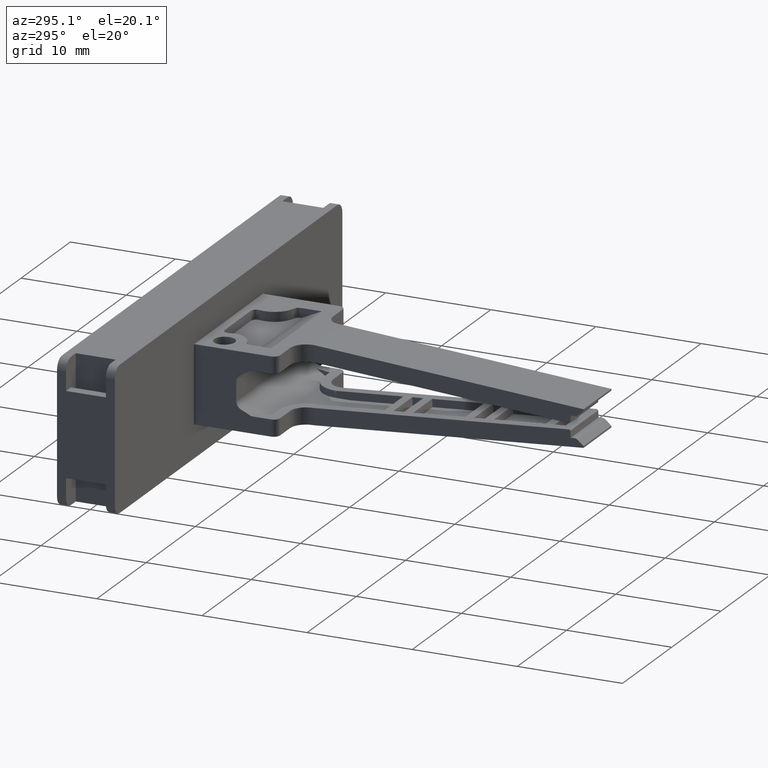
[diagram: clean part render]
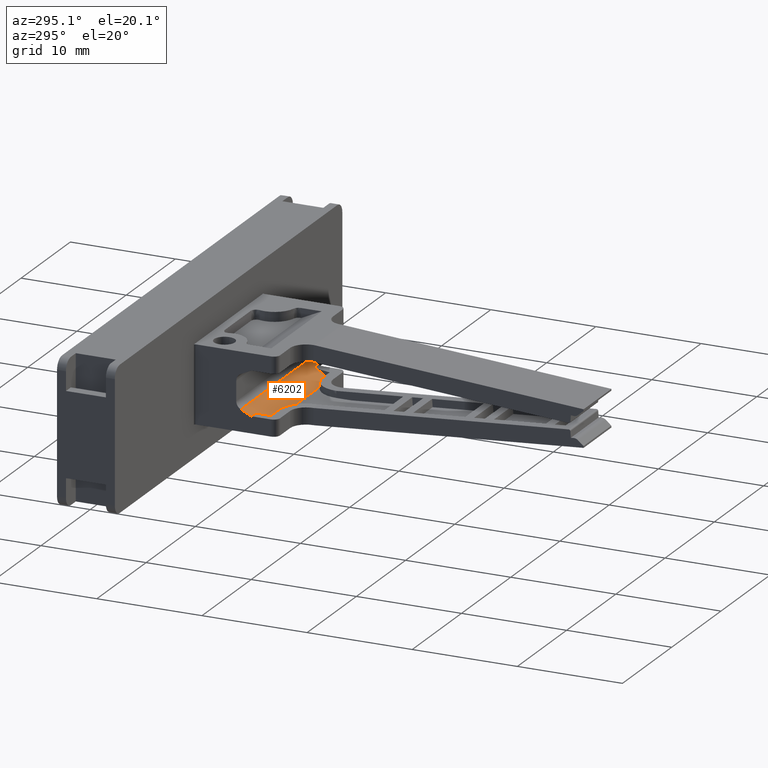
[diagram: same view with one face highlighted and labeled with its STEP entity id]
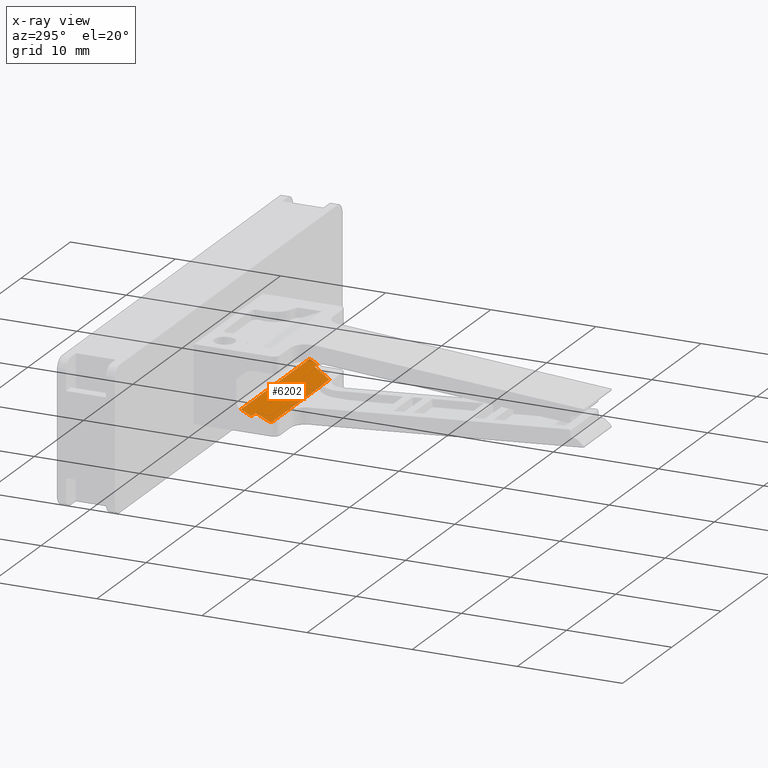
[diagram: x-ray of the same camera — body ghosted, the highlighted face saturated]
A machine part, auxiliary view. The second image highlights one B-rep face of the part: STEP entity #6202.
The next image is the same camera in x-ray: the body ghosted, the highlighted face saturated — about 1% of this face is hidden behind the body in this view.
In plain terms, the highlighted planar face has unit normal (-0, -0.4226, 0.9063).
Its self-contained STEP definition (entity closure, byte-faithful):
#622 = PLANE ( 'NONE',  #7367 ) ;
#636 = CARTESIAN_POINT ( 'NONE',  ( -428.7687003443962800, 141.8010320521553900, 13.44901421721973000 ) ) ;
#637 = DIRECTION ( 'NONE',  ( -6.632283297371180900E-015, -0.4226182617406978900, 0.9063077870366507100 ) ) ;
#639 = DIRECTION ( 'NONE',  ( 0.0000000000000000000, -0.9063077870366507100, -0.4226182617406978900 ) ) ;
#651 = FACE_OUTER_BOUND ( 'NONE', #4889, .T. ) ;
#1148 = CARTESIAN_POINT ( 'NONE',  ( -435.5423251422192800, 139.3574068649388700, 12.30953307876015800 ) ) ;
#1166 = CARTESIAN_POINT ( 'NONE',  ( -446.0397416577373500, 140.7867850768738000, 12.97606308538526000 ) ) ;
#1175 = CARTESIAN_POINT ( 'NONE',  ( -446.9170890845463800, 140.7867850768738000, 12.97606308538525800 ) ) ;
#1181 = CARTESIAN_POINT ( 'NONE',  ( -446.9170890845463800, 141.8010320521558500, 13.44901421721981400 ) ) ;
#1189 = CARTESIAN_POINT ( 'NONE',  ( -446.0397416577373000, 139.5468392362984400, 12.39786684422753500 ) ) ;
#1202 = CARTESIAN_POINT ( 'NONE',  ( -432.9670890845463300, 141.8010320521556800, 13.44901421721984400 ) ) ;
#2219 = CARTESIAN_POINT ( 'NONE',  ( -445.8397368130287100, 139.3468392363571700, 12.30460531262392200 ) ) ;
#2236 = CARTESIAN_POINT ( 'NONE',  ( -433.6497416578516800, 140.9877086759729800, 13.06975529834936700 ) ) ;
#2238 = CARTESIAN_POINT ( 'NONE',  ( -435.7695059051233700, 139.3470831730260200, 12.30471906216079100 ) ) ;
#2265 = CARTESIAN_POINT ( 'NONE',  ( -434.0824230767946700, 139.3575441641764900, 12.30959710244613700 ) ) ;
#2294 = CARTESIAN_POINT ( 'NONE',  ( -432.9670890845463300, 140.9877086759729800, 13.06975529834936900 ) ) ;
#3001 = CARTESIAN_POINT ( 'NONE',  ( -445.9444146662082200, 139.3677132532026200, 12.31433902653542500 ) ) ;
#3005 = CARTESIAN_POINT ( 'NONE',  ( -446.0383991784369200, 139.4912496597659700, 12.37194499897687400 ) ) ;
#3011 = LINE ( 'NONE', #3014, #7717 ) ;
#3014 = CARTESIAN_POINT ( 'NONE',  ( -428.7687003443962800, 140.7867850768737400, 12.97606308538536600 ) ) ;
#3016 = DIRECTION ( 'NONE',  ( 1.000000000000000000, -2.802924038506872700E-015, 6.010889998240615500E-015 ) ) ;
#3020 = CARTESIAN_POINT ( 'NONE',  ( -445.8972731701841200, 139.3481876095855500, 12.30523406938638000 ) ) ;
#3027 = CARTESIAN_POINT ( 'NONE',  ( -446.0397416577373000, 139.5468392362984400, 12.39786684422753500 ) ) ;
#3034 = CARTESIAN_POINT ( 'NONE',  ( -446.0179079359941200, 139.4431190812141500, 12.34950134160672500 ) ) ;
#3035 = CARTESIAN_POINT ( 'NONE',  ( -445.8397368130287100, 139.3468392363571700, 12.30460531262392200 ) ) ;
#3041 = LINE ( 'NONE', #3101, #7726 ) ;
#3101 = CARTESIAN_POINT ( 'NONE',  ( -428.7687003443962800, 140.9877086759729800, 13.06975529834939600 ) ) ;
#3105 = DIRECTION ( 'NONE',  ( 1.000000000000000000, -2.802924038506872700E-015, 6.010889998240615500E-015 ) ) ;
#3110 = LINE ( 'NONE', #3122, #6962 ) ;
#3111 = DIRECTION ( 'NONE',  ( 0.0000000000000000000, -0.9063077870366526000, -0.4226182617406938300 ) ) ;
#3122 = CARTESIAN_POINT ( 'NONE',  ( -446.0397416577373500, 140.7867850768738000, 12.97606308538526100 ) ) ;
#3186 = CARTESIAN_POINT ( 'NONE',  ( -435.6939349519059300, 139.3539585056158200, 12.30792460297095300 ) ) ;
#3189 = LINE ( 'NONE', #3248, #6999 ) ;
#3196 = CARTESIAN_POINT ( 'NONE',  ( -432.9670890845463300, 141.8010320521553900, 13.44901421721970500 ) ) ;
#3198 = LINE ( 'NONE', #3196, #6987 ) ;
#3211 = DIRECTION ( 'NONE',  ( -0.0000000000000000000, 0.9063077870366507100, 0.4226182617406978900 ) ) ;
#3213 = CARTESIAN_POINT ( 'NONE',  ( -435.5423251422192800, 139.3574068649388700, 12.30953307876015800 ) ) ;
#3223 = CARTESIAN_POINT ( 'NONE',  ( -435.6181041243817200, 139.3573997381618000, 12.30952927517074300 ) ) ;
#3224 = CARTESIAN_POINT ( 'NONE',  ( -435.7695059051233700, 139.3470831730260200, 12.30471906216079100 ) ) ;
#3241 = DIRECTION ( 'NONE',  ( -1.000000000000000000, 1.569331923815560200E-014, 0.0000000000000000000 ) ) ;
#3248 = CARTESIAN_POINT ( 'NONE',  ( -428.7687003443962800, 141.8010320521556500, 13.44901421721984200 ) ) ;
#3369 = CARTESIAN_POINT ( 'NONE',  ( -435.5423251422193400, 139.3574068649388900, 12.30953307876015600 ) ) ;
#3370 = DIRECTION ( 'NONE',  ( 0.9999999946159710000, 9.404688174522467300E-005, 4.385478118899613800E-005 ) ) ;
#3388 = LINE ( 'NONE', #3369, #6980 ) ;
#3528 = LINE ( 'NONE', #3552, #7014 ) ;
#3538 = DIRECTION ( 'NONE',  ( 0.0000000000000000000, -0.9063077870366507100, -0.4226182617406978900 ) ) ;
#3552 = CARTESIAN_POINT ( 'NONE',  ( -446.9170890845463800, 141.8010320521554500, 13.44901421721962200 ) ) ;
#4079 = B_SPLINE_CURVE_WITH_KNOTS ( 'NONE', 3,
 ( #5030, #5034, #5204, #5235, #5149, #5133, #5141, #5242, #5170, #5192, #5194, #5225, #5227, #5196, #5161, #5206, #5145, #5143, #5244, #5178, #5168, #5158, #5184, #5229 ),
 .UNSPECIFIED., .F., .F.,
 ( 4, 1, 1, 1, 1, 1, 1, 1, 2, 2, 1, 1, 1, 1, 1, 2, 2, 4 ),
 ( 0.0000000000000000000, 0.2499999999970672300, 0.3749999999956014100, 0.4374999999948692200, 0.4687499999945294900, 0.4843749999943727200, 0.4921874999942523800, 0.4960937499941786000, 0.4980468749941853200, 0.4999999999941919800, 0.6249999999953226300, 0.6874999999958976100, 0.7187499999961644000, 0.7343749999962637700, 0.7421874999963722400, 0.7460937499964265300, 0.7499999999964807000, 1.000000000000000000 ),
 .UNSPECIFIED. ) ;
#4104 = B_SPLINE_CURVE_WITH_KNOTS ( 'NONE', 3,
 ( #3213, #3223, #3186, #3224 ),
 .UNSPECIFIED., .F., .F.,
 ( 4, 4 ),
 ( 0.0000000000000000000, 1.000000000000000000 ),
 .UNSPECIFIED. ) ;
#4149 = B_SPLINE_CURVE_WITH_KNOTS ( 'NONE', 3,
 ( #3027, #3005, #3034, #3001, #3020, #3035 ),
 .UNSPECIFIED., .F., .F.,
 ( 4, 2, 4 ),
 ( 0.0000000000000000000, 0.5000000000000000000, 1.000000000000000000 ),
 .UNSPECIFIED. ) ;
#4889 = EDGE_LOOP ( 'NONE', ( #5345, #5276, #5356, #5372, #5326, #5291, #5298, #5274, #5360, #5278, #5289 ) ) ;
#5030 = CARTESIAN_POINT ( 'NONE',  ( -434.0824230767946700, 139.3575441641764900, 12.30959710244613700 ) ) ;
#5034 = CARTESIAN_POINT ( 'NONE',  ( -434.0368217930597400, 139.5346607239823100, 12.39218791066968700 ) ) ;
#5133 = CARTESIAN_POINT ( 'NONE',  ( -433.8832020146983800, 140.1313238972585700, 12.67041651770744100 ) ) ;
#5141 = CARTESIAN_POINT ( 'NONE',  ( -433.8776323831601800, 140.1529564895098500, 12.68050396113997600 ) ) ;
#5143 = CARTESIAN_POINT ( 'NONE',  ( -433.7673586719856200, 140.5811696139287200, 12.88018302037897900 ) ) ;
#5145 = CARTESIAN_POINT ( 'NONE',  ( -433.7678714686230100, 140.5791848474011700, 12.87925750854749800 ) ) ;
#5149 = CARTESIAN_POINT ( 'NONE',  ( -433.8947746203264200, 140.0863755991290400, 12.64945678206861500 ) ) ;
#5158 = CARTESIAN_POINT ( 'NONE',  ( -433.7363941953449300, 140.7001083156854400, 12.93564504785913600 ) ) ;
#5161 = CARTESIAN_POINT ( 'NONE',  ( -433.7757567466760500, 140.5485951329231100, 12.86499329042562700 ) ) ;
#5168 = CARTESIAN_POINT ( 'NONE',  ( -433.7675542367059100, 140.5804234986594000, 12.87983510111502200 ) ) ;
#5170 = CARTESIAN_POINT ( 'NONE',  ( -433.8735499531899800, 140.1688127525925200, 12.68789785804514700 ) ) ;
#5178 = CARTESIAN_POINT ( 'NONE',  ( -433.7671314098803900, 140.5820472040329300, 12.88059224736530900 ) ) ;
#5184 = CARTESIAN_POINT ( 'NONE',  ( -433.6972831308108300, 140.8352562731642200, 12.99866557541548500 ) ) ;
#5192 = CARTESIAN_POINT ( 'NONE',  ( -433.8729735198860500, 140.1710516343825400, 12.68894186576950000 ) ) ;
#5194 = CARTESIAN_POINT ( 'NONE',  ( -433.8725898758713700, 140.1725417176090500, 12.68963670298934900 ) ) ;
#5196 = CARTESIAN_POINT ( 'NONE',  ( -433.7990931126886400, 140.4579925394530700, 12.82274460724184300 ) ) ;
#5204 = CARTESIAN_POINT ( 'NONE',  ( -433.9763438455518700, 139.7695586288004400, 12.50172260257091000 ) ) ;
#5206 = CARTESIAN_POINT ( 'NONE',  ( -433.7695839902161800, 140.5725465835869600, 12.87616203529410300 ) ) ;
#5225 = CARTESIAN_POINT ( 'NONE',  ( -433.8727426682734200, 140.1719482679873700, 12.68935997288598800 ) ) ;
#5227 = CARTESIAN_POINT ( 'NONE',  ( -433.8379371745737700, 140.3071337013776400, 12.75239797574690900 ) ) ;
#5229 = CARTESIAN_POINT ( 'NONE',  ( -433.6497416578516800, 140.9877086759729800, 13.06975529834936700 ) ) ;
#5235 = CARTESIAN_POINT ( 'NONE',  ( -433.9196532017907700, 139.9897465483626600, 12.60439791569598700 ) ) ;
#5242 = CARTESIAN_POINT ( 'NONE',  ( -433.8749017352101300, 140.1635623964322400, 12.68544957675953600 ) ) ;
#5244 = CARTESIAN_POINT ( 'NONE',  ( -433.7672125014607300, 140.5817342927164200, 12.88044633442207000 ) ) ;
#5274 = ORIENTED_EDGE ( 'NONE', *, *, #6662, .T. ) ;
#5276 = ORIENTED_EDGE ( 'NONE', *, *, #6699, .T. ) ;
#5278 = ORIENTED_EDGE ( 'NONE', *, *, #6601, .T. ) ;
#5289 = ORIENTED_EDGE ( 'NONE', *, *, #6638, .T. ) ;
#5291 = ORIENTED_EDGE ( 'NONE', *, *, #6480, .T. ) ;
#5298 = ORIENTED_EDGE ( 'NONE', *, *, #6641, .F. ) ;
#5326 = ORIENTED_EDGE ( 'NONE', *, *, #6583, .T. ) ;
#5345 = ORIENTED_EDGE ( 'NONE', *, *, #6643, .T. ) ;
#5356 = ORIENTED_EDGE ( 'NONE', *, *, #6586, .T. ) ;
#5360 = ORIENTED_EDGE ( 'NONE', *, *, #6457, .T. ) ;
#5363 = CARTESIAN_POINT ( 'NONE',  ( -445.8397368130287600, 139.3468392363572000, 12.30460531262393100 ) ) ;
#5372 = ORIENTED_EDGE ( 'NONE', *, *, #6611, .T. ) ;
#5415 = LINE ( 'NONE', #5363, #7651 ) ;
#5424 = DIRECTION ( 'NONE',  ( 0.9999999996428143900, 2.422354273506097300E-005, 1.129562349235745700E-005 ) ) ;
#5831 = VERTEX_POINT ( 'NONE', #2219 ) ;
#5871 = VERTEX_POINT ( 'NONE', #2265 ) ;
#5881 = VERTEX_POINT ( 'NONE', #2238 ) ;
#5882 = VERTEX_POINT ( 'NONE', #2236 ) ;
#5973 = VERTEX_POINT ( 'NONE', #2294 ) ;
#5989 = VERTEX_POINT ( 'NONE', #1202 ) ;
#5991 = VERTEX_POINT ( 'NONE', #1189 ) ;
#6000 = VERTEX_POINT ( 'NONE', #1181 ) ;
#6008 = VERTEX_POINT ( 'NONE', #1148 ) ;
#6017 = VERTEX_POINT ( 'NONE', #1166 ) ;
#6032 = VERTEX_POINT ( 'NONE', #1175 ) ;
#6202 = ADVANCED_FACE ( 'NONE', ( #651 ), #622, .T. ) ;
#6457 = EDGE_CURVE ( 'NONE', #5871, #5882, #4079, .T. ) ;
#6480 = EDGE_CURVE ( 'NONE', #5831, #5881, #5415, .T. ) ;
#6583 = EDGE_CURVE ( 'NONE', #5991, #5831, #4149, .T. ) ;
#6586 = EDGE_CURVE ( 'NONE', #6032, #6017, #3011, .T. ) ;
#6601 = EDGE_CURVE ( 'NONE', #5882, #5973, #3041, .T. ) ;
#6611 = EDGE_CURVE ( 'NONE', #6017, #5991, #3110, .T. ) ;
#6638 = EDGE_CURVE ( 'NONE', #5973, #5989, #3198, .T. ) ;
#6641 = EDGE_CURVE ( 'NONE', #6008, #5881, #4104, .T. ) ;
#6643 = EDGE_CURVE ( 'NONE', #5989, #6000, #3189, .T. ) ;
#6662 = EDGE_CURVE ( 'NONE', #6008, #5871, #3388, .T. ) ;
#6699 = EDGE_CURVE ( 'NONE', #6000, #6032, #3528, .T. ) ;
#6962 = VECTOR ( 'NONE', #3111, 1000.000000000000100 ) ;
#6980 = VECTOR ( 'NONE', #3370, 1000.000000000000100 ) ;
#6987 = VECTOR ( 'NONE', #3211, 1000.000000000000000 ) ;
#6999 = VECTOR ( 'NONE', #3241, 1000.000000000000000 ) ;
#7014 = VECTOR ( 'NONE', #3538, 1000.000000000000000 ) ;
#7367 = AXIS2_PLACEMENT_3D ( 'NONE', #636, #637, #639 ) ;
#7651 = VECTOR ( 'NONE', #5424, 1000.000000000000100 ) ;
#7717 = VECTOR ( 'NONE', #3016, 1000.000000000000000 ) ;
#7726 = VECTOR ( 'NONE', #3105, 1000.000000000000000 ) ;